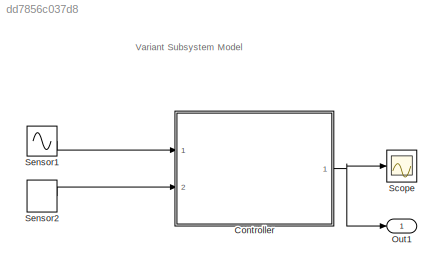
MODEL slx_dd7856c037d8
KIND model
CONFIG AbsTol = auto
CONFIG EnableMultiTasking = on
CONFIG FixedStep = auto
CONFIG MaxStep = auto
CONFIG MinStep = auto
CONFIG PreLoadFcn = VSS_LINEAR_CONTROLLER=Simulink.Variant('VSS_MODE==1')\nVSS_NONLINEAR_CONTROLLER=Simulink.Variant('VSS_MODE==2')\n\nVSS_MODE=2
CONFIG RelTol = 1e-3
CONFIG SampleTimeConstraint = Unconstrained
CONFIG Solver = FixedStepDiscrete
CONFIG SolverName = FixedStepDiscrete
CONFIG StartTime = 0.0
CONFIG StopTime = 10.0
WORKSPACE source: MAT-file member
WORKSPACE M_heater_air = 3600
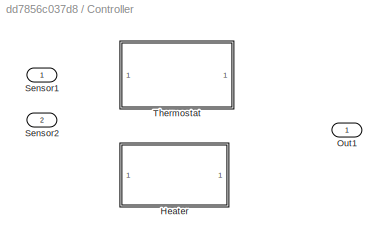
BLOCK [SubSystem] Controller
  Ports = [2, 1]
  RequestExecContextInheritance = off
  Variant = on
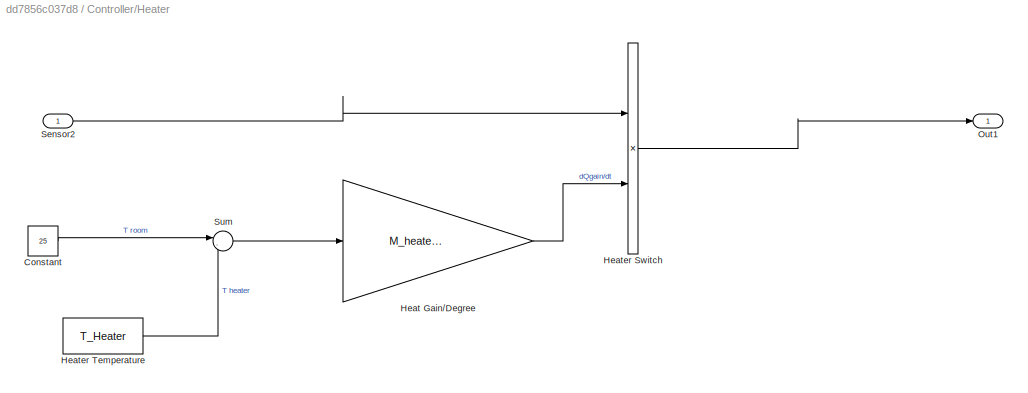
BLOCK [SubSystem] Controller/Heater
  Ports = [1, 1]
  RequestExecContextInheritance = off
  Variant = off
  VariantControl = VSS_HEATER
BLOCK [Constant] Controller/Heater/Constant
  Value = 25
BLOCK [Gain] Controller/Heater/Heat Gain//Degree
  Gain = M_heater_air*c_air
  OutDataTypeStr = Inherit: Inherit via internal rule
  ParamDataTypeStr = Inherit: Inherit via internal rule
  SaturateOnIntegerOverflow = off
BLOCK [Product] Controller/Heater/Heater Switch
  InputSameDT = off
  OutDataTypeStr = Inherit: Inherit via internal rule
  Ports = [2, 1]
  RndMeth = Floor
  SaturateOnIntegerOverflow = off
BLOCK [Constant] Controller/Heater/Heater Temperature
  Value = T_Heater
BLOCK [Outport] Controller/Heater/Out1
  IconDisplay = Port number
BLOCK [Inport] Controller/Heater/Sensor2
  IconDisplay = Port number
BLOCK [Sum] Controller/Heater/Sum
  IconShape = round
  InputSameDT = off
  Inputs = |-+
  OutDataTypeStr = Inherit: Inherit via internal rule
  Ports = [2, 1]
  SaturateOnIntegerOverflow = off
BLOCK [Outport] Controller/Out1
  IconDisplay = Port number
BLOCK [Inport] Controller/Sensor1
  IconDisplay = Port number
BLOCK [Inport] Controller/Sensor2
  IconDisplay = Port number
  Port = 2
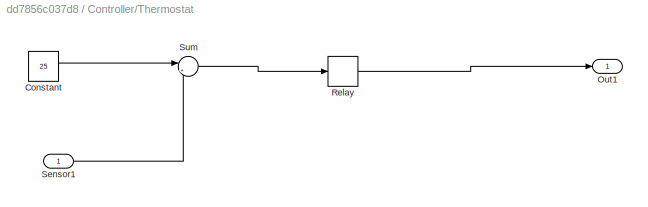
BLOCK [SubSystem] Controller/Thermostat
  Ports = [1, 1]
  RequestExecContextInheritance = off
  Variant = off
  VariantControl = VSS_THERMOSTAT
BLOCK [Constant] Controller/Thermostat/Constant
  Value = 25
BLOCK [Outport] Controller/Thermostat/Out1 
  IconDisplay = Port number
BLOCK [Relay] Controller/Thermostat/Relay
  InputProcessing = Elements as channels (sample based)
  OffSwitchValue = -2
  OnSwitchValue = 2
BLOCK [Inport] Controller/Thermostat/Sensor1 
  IconDisplay = Port number
BLOCK [Sum] Controller/Thermostat/Sum
  IconShape = round
  InputSameDT = off
  Inputs = |+-
  OutDataTypeStr = Inherit: Inherit via internal rule
  Ports = [2, 1]
  SaturateOnIntegerOverflow = off
BLOCK [Outport] Out1
  IconDisplay = Port number
BLOCK [Scope] Scope
  NumInputPorts = 1
  Ports = [1]
  ScopeSpecificationString = Simulink.scopes.TimeScopeBlockCfg('CurrentConfiguration', extmgr.ConfigurationSet(extmgr.Configuration('Core','General UI',true),extmgr.Configuration('Core','Source UI',true),extmgr.Configuration('Sources','WiredSimulink',true,'DataLoggingSaveFormat','StructureWithTime','DataLoggingLimitDataPoints',true,'DataLoggingDecimation','1','DataLoggingDecimateData',true),extmgr.Configuration('Visuals','Tim...<+1630ch>
BLOCK [Sin] Sensor1
  Amplitude = 10
  Bias = 20
  Frequency = 0.5
  Ports = [0, 1]
  SampleTime = 1
  SineType = Sample based
BLOCK [DiscretePulseGenerator] Sensor2
  Period = 10
  Ports = [0, 1]
  PulseWidth = 5
ANNOTATION (root): Variant Subsystem Model
LINE Controller/Heater/Constant:1 -> Controller/Heater/Sum:1
LINE Controller/Heater/Heat Gain//Degree:1 -> Controller/Heater/Heater Switch:2
LINE Controller/Heater/Heater Switch:1 -> Controller/Heater/Out1:1
LINE Controller/Heater/Heater Temperature:1 -> Controller/Heater/Sum:2
LINE Controller/Heater/Sensor2:1 -> Controller/Heater/Heater Switch:1
LINE Controller/Heater/Sum:1 -> Controller/Heater/Heat Gain//Degree:1
LINE Controller/Thermostat/Constant:1 -> Controller/Thermostat/Sum:1
LINE Controller/Thermostat/Relay:1 -> Controller/Thermostat/Out1 :1
LINE Controller/Thermostat/Sensor1 :1 -> Controller/Thermostat/Sum:2
LINE Controller/Thermostat/Sum:1 -> Controller/Thermostat/Relay:1
NET Controller:1 -> Out1:1, Scope:1
LINE Sensor1:1 -> Controller:1
LINE Sensor2:1 -> Controller:2
note: NET lines group one-source signal fan-out (src -> all destinations, sorted); 1:1 wires keep LINE
